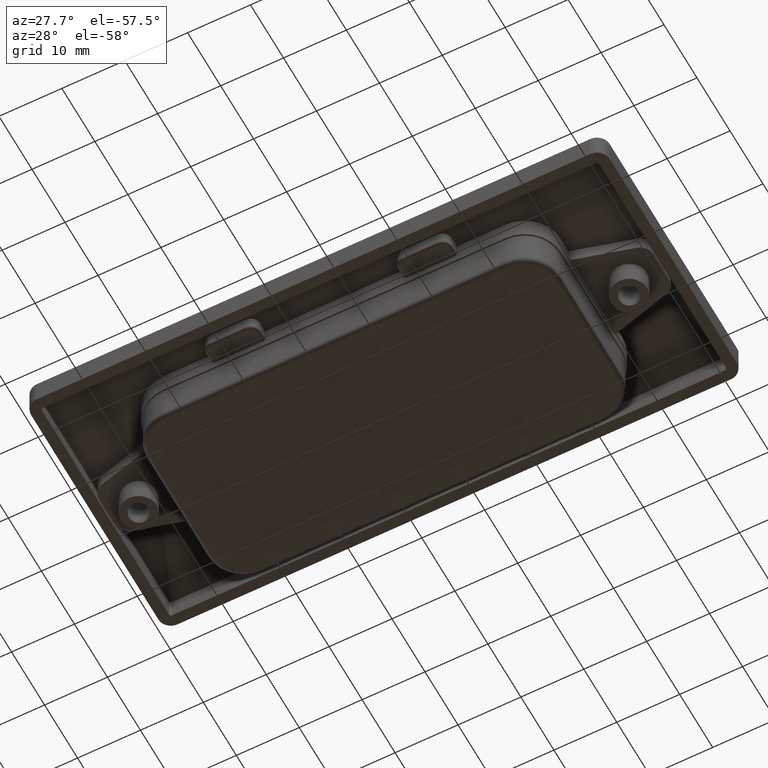
[diagram: clean part render]
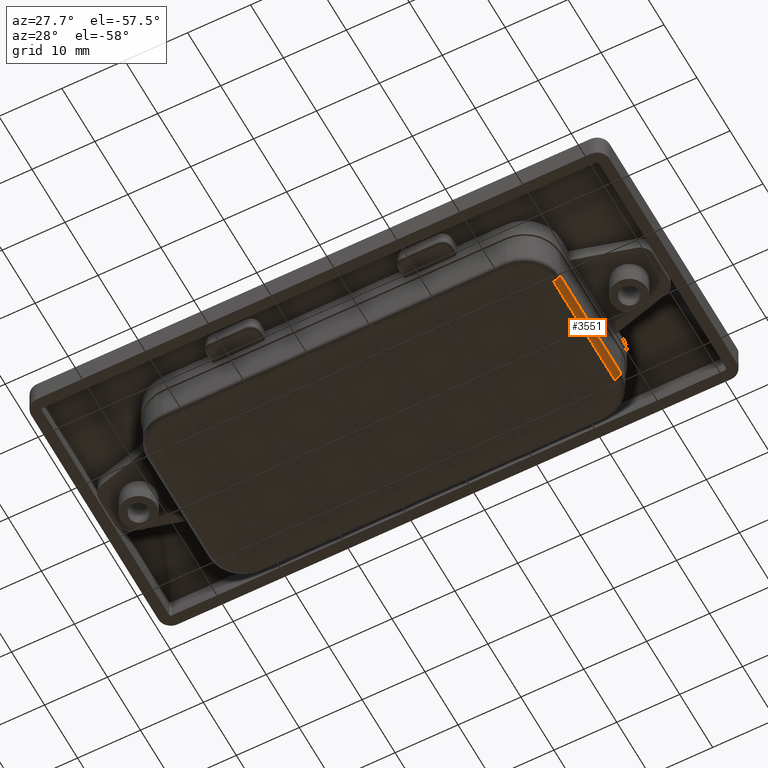
[diagram: same view with one face highlighted and labeled with its STEP entity id]
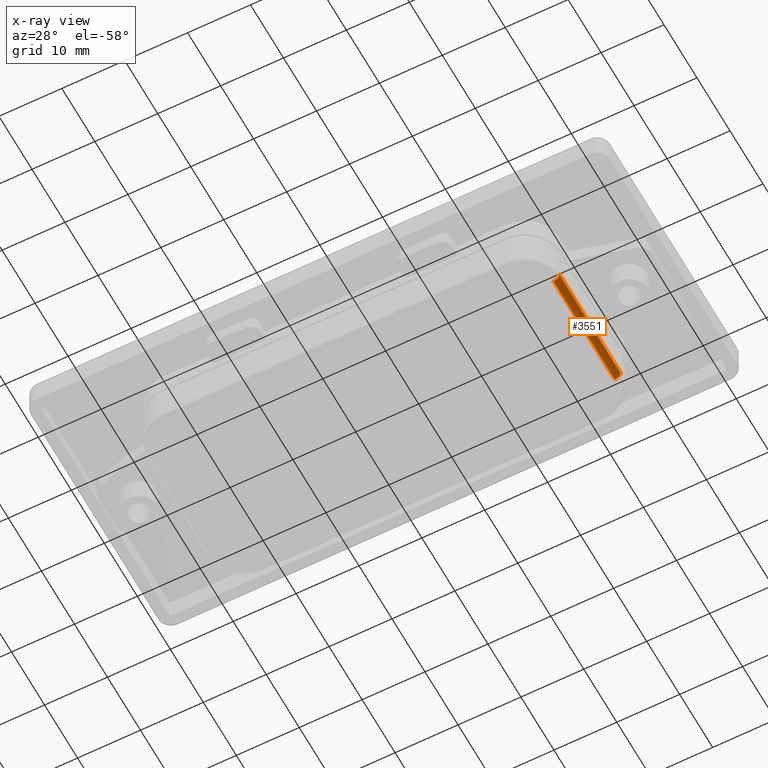
[diagram: x-ray of the same camera — body ghosted, the highlighted face saturated]
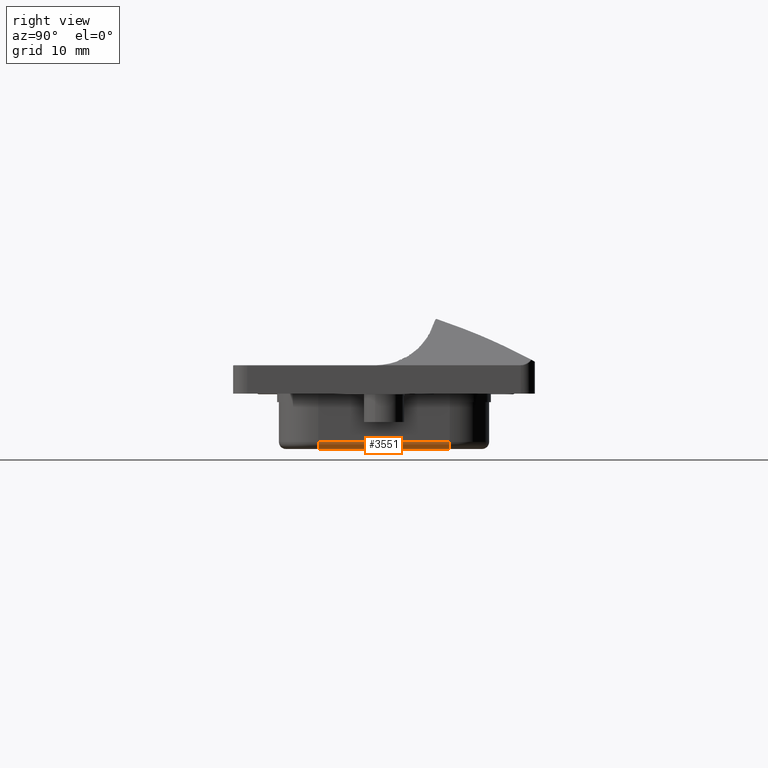
[diagram: same view with one face highlighted and labeled with its STEP entity id]
A machine part, auxiliary view. The second image highlights one B-rep face of the part: STEP entity #3551.
The next image is the same camera in x-ray: the body ghosted, the highlighted face saturated — about 0% of this face is hidden behind the body in this view.
A second angle (right view) of the same face is appended — the face is thin or edge-on in the first view.
In plain terms, the highlighted cylindrical surface (edge-blend (fillet) strip) has radius 1 mm, axis along (0, -1, -0).
Its self-contained STEP definition (entity closure, byte-faithful):
#264=LINE('',#7039,#517);
#265=LINE('',#7040,#518);
#517=VECTOR('',#4688,18.5);
#518=VECTOR('',#4689,18.5);
#704=CYLINDRICAL_SURFACE('',#3891,1.);
#889=FACE_OUTER_BOUND('',#1108,.T.);
#1108=EDGE_LOOP('',(#2963,#2964,#2965,#2966));
#1322=CIRCLE('',#3888,1.);
#1325=CIRCLE('',#3892,1.);
#1660=VERTEX_POINT('',#7030);
#1661=VERTEX_POINT('',#7031);
#1662=VERTEX_POINT('',#7036);
#1663=VERTEX_POINT('',#7037);
#2117=EDGE_CURVE('',#1660,#1661,#1322,.T.);
#2120=EDGE_CURVE('',#1662,#1663,#1325,.T.);
#2121=EDGE_CURVE('',#1663,#1661,#264,.T.);
#2122=EDGE_CURVE('',#1660,#1662,#265,.T.);
#2963=ORIENTED_EDGE('',*,*,#2120,.T.);
#2964=ORIENTED_EDGE('',*,*,#2121,.T.);
#2965=ORIENTED_EDGE('',*,*,#2117,.F.);
#2966=ORIENTED_EDGE('',*,*,#2122,.T.);
#3551=ADVANCED_FACE('',(#889),#704,.T.);
#3888=AXIS2_PLACEMENT_3D('',#7032,#4678,#4679);
#3891=AXIS2_PLACEMENT_3D('',#7035,#4684,#4685);
#3892=AXIS2_PLACEMENT_3D('',#7038,#4686,#4687);
#4678=DIRECTION('center_axis',(2.22044604925032E-15,-1.,0.));
#4679=DIRECTION('ref_axis',(0.,0.,-1.));
#4684=DIRECTION('center_axis',(2.40048221540574E-16,-1.,0.));
#4685=DIRECTION('ref_axis',(0.707106781186547,0.,-0.707106781186548));
#4686=DIRECTION('center_axis',(0.,-1.,0.));
#4687=DIRECTION('ref_axis',(0.,0.,-1.));
#4688=DIRECTION('',(2.40048221540574E-16,-1.,0.));
#4689=DIRECTION('',(-2.40048221540574E-16,1.,0.));
#7030=CARTESIAN_POINT('',(31.8,-9.25,-7.7));
#7031=CARTESIAN_POINT('',(32.8,-9.25,-6.7));
#7032=CARTESIAN_POINT('Origin',(31.8,-9.25,-6.7));
#7035=CARTESIAN_POINT('Origin',(31.8,4.625,-6.7));
#7036=CARTESIAN_POINT('',(31.8,9.25,-7.7));
#7037=CARTESIAN_POINT('',(32.8,9.25,-6.7));
#7038=CARTESIAN_POINT('Origin',(31.8,9.25,-6.7));
#7039=CARTESIAN_POINT('',(32.8,4.625,-6.7));
#7040=CARTESIAN_POINT('',(31.8,4.625,-7.7));